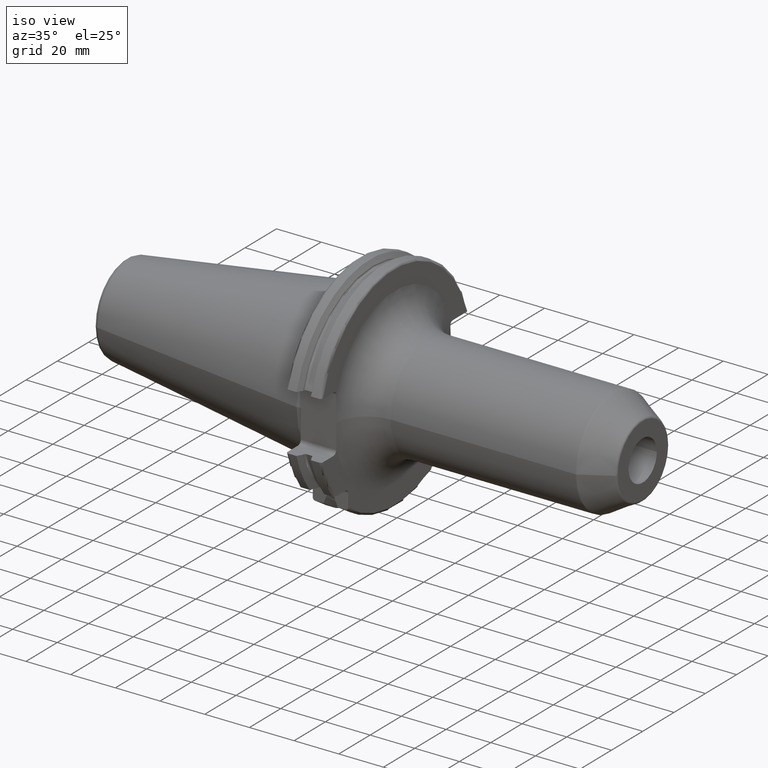
[diagram: clean part render]
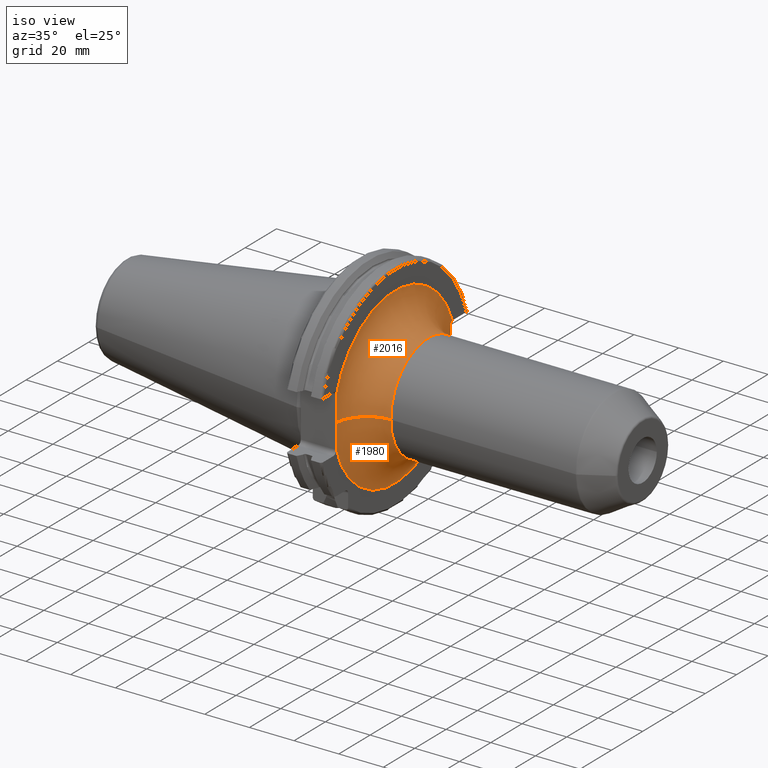
[diagram: same view with one multi-face feature highlighted, each face labeled with its STEP entity id]
A machine part, iso view. The highlighted faces form ONE feature: a constant-radius fillet chain: 2 tangent blend faces with common blend radius 15 mm. The faces share edges in the B-rep.
Their STEP definitions:
[1] entity #2016 (Torus):
#161=CARTESIAN_POINT('',(1.905E1,0.E0,0.E0));
#162=DIRECTION('',(1.E0,0.E0,0.E0));
#163=DIRECTION('',(0.E0,9.438595341718E-1,3.303470595494E-1));
#164=AXIS2_PLACEMENT_3D('',#161,#162,#163);
#185=CARTESIAN_POINT('',(3.405E1,-3.899999964013E1,-5.298089090639E-3));
#186=DIRECTION('',(0.E0,1.358484382215E-4,-9.999999907726E-1));
#187=DIRECTION('',(-9.949874394251E-1,9.999997600876E-2,1.358484068833E-5));
#188=AXIS2_PLACEMENT_3D('',#185,#186,#187);
#216=CARTESIAN_POINT('',(1.918137640837E1,3.53E1,1.115E1));
#217=CARTESIAN_POINT('',(1.917671494499E1,3.53E1,1.126616559868E1));
#218=CARTESIAN_POINT('',(1.916448306714E1,3.532343312153E1,1.149936506376E1));
#219=CARTESIAN_POINT('',(1.914038851501E1,3.542625648776E1,1.183392156617E1));
#220=CARTESIAN_POINT('',(1.911298733341E1,3.559953511393E1,1.215179385381E1));
#221=CARTESIAN_POINT('',(1.908660386944E1,3.584003914816E1,1.243192871620E1));
#222=CARTESIAN_POINT('',(1.906582869627E1,3.612957748043E1,1.265301125466E1));
#223=CARTESIAN_POINT('',(1.905281085720E1,3.645682053949E1,1.280960854187E1));
#224=CARTESIAN_POINT('',(1.905E1,3.669155660961E1,1.286712673317E1));
#225=CARTESIAN_POINT('',(1.905E1,3.681051548351E1,1.288356025536E1));
#227=CARTESIAN_POINT('',(1.951349414704E1,3.53E1,4.798122810643E-3));
#228=CARTESIAN_POINT('',(1.951347280974E1,3.53E1,6.215368898776E-1));
#229=CARTESIAN_POINT('',(1.950500717658E1,3.53E1,1.887638009137E0));
#230=CARTESIAN_POINT('',(1.946601815670E1,3.53E1,3.842591144301E0));
#231=CARTESIAN_POINT('',(1.939821598225E1,3.53E1,5.979554142847E0));
#232=CARTESIAN_POINT('',(1.929823798374E1,3.53E1,8.416985606384E0));
#233=CARTESIAN_POINT('',(1.921913129347E1,3.53E1,1.020913262166E1));
#234=CARTESIAN_POINT('',(1.918137640837E1,3.53E1,1.115E1));
#236=CARTESIAN_POINT('',(3.405E1,3.899999963973E1,5.301042149749E-3));
#237=DIRECTION('',(0.E0,-1.359241576859E-4,9.999999907623E-1));
#238=DIRECTION('',(-9.691003901972E-1,-2.466666426487E-1,-3.352795594094E-5));
#239=AXIS2_PLACEMENT_3D('',#236,#237,#238);
#241=CARTESIAN_POINT('',(1.905E1,-3.749999313437E1,1.071227308265E1));
#242=CARTESIAN_POINT('',(1.905E1,-3.749999313437E1,9.527070664641E0));
#243=CARTESIAN_POINT('',(1.907084416901E1,-3.750000320396E1,7.152680525913E0));
#244=CARTESIAN_POINT('',(1.911311898158E1,-3.749999908458E1,3.572424648342E0));
#245=CARTESIAN_POINT('',(1.912520469628E1,-3.75E1,1.187853866845E0));
#246=CARTESIAN_POINT('',(1.912518840862E1,-3.75E1,-5.094316480315E-3));
#1043=CARTESIAN_POINT('',(3.405E1,0.E0,0.E0));
#1044=DIRECTION('',(1.E0,0.E0,0.E0));
#1045=DIRECTION('',(0.E0,1.E0,0.E0));
#1046=AXIS2_PLACEMENT_3D('',#1043,#1044,#1045);
#1677=CARTESIAN_POINT('',(3.405E1,-2.4E1,0.E0));
#1678=CARTESIAN_POINT('',(3.405E1,2.4E1,0.E0));
#1679=VERTEX_POINT('',#1677);
#1680=VERTEX_POINT('',#1678);
#1681=CARTESIAN_POINT('',(1.905E1,3.681052183270E1,1.288353532243E1));
#1682=CARTESIAN_POINT('',(1.905E1,-3.749991569209E1,1.071243777514E1));
#1683=VERTEX_POINT('',#1681);
#1684=VERTEX_POINT('',#1682);
#1701=VERTEX_POINT('',#227);
#1702=VERTEX_POINT('',#234);
#1704=VERTEX_POINT('',#246);
#2000=CARTESIAN_POINT('',(3.405E1,0.E0,0.E0));
#2001=DIRECTION('',(1.E0,0.E0,0.E0));
#2002=DIRECTION('',(0.E0,1.485959642860E-3,-9.999988959614E-1));
#2003=AXIS2_PLACEMENT_3D('',#2000,#2001,#2002);
#2004=TOROIDAL_SURFACE('',#2003,3.9E1,1.5E1);
#2005=ORIENTED_EDGE('',*,*,#1945,.F.);
#2007=ORIENTED_EDGE('',*,*,#2006,.F.);
#2008=ORIENTED_EDGE('',*,*,#1880,.F.);
#2009=ORIENTED_EDGE('',*,*,#1974,.T.);
#2011=ORIENTED_EDGE('',*,*,#2010,.T.);
#2012=ORIENTED_EDGE('',*,*,#1970,.F.);
#2013=ORIENTED_EDGE('',*,*,#1987,.F.);
#2014=EDGE_LOOP('',(#2005,#2007,#2008,#2009,#2011,#2012,#2013));
#2015=FACE_OUTER_BOUND('',#2014,.F.);
#2016=ADVANCED_FACE('',(#2015),#2004,.F.);
#165=CIRCLE('',#164,3.9E1);
#189=CIRCLE('',#188,1.5E1);
#226=B_SPLINE_CURVE_WITH_KNOTS('',3,(#216,#217,#218,#219,#220,#221,#222,#223,
#224,#225),.UNSPECIFIED.,.F.,.F.,(4,1,1,1,1,1,1,4),(0.E0,1.428571428571E-1,
2.857142857143E-1,4.285714285714E-1,5.714285714286E-1,7.142857142857E-1,
8.571428571429E-1,1.E0),.UNSPECIFIED.);
#235=B_SPLINE_CURVE_WITH_KNOTS('',3,(#227,#228,#229,#230,#231,#232,#233,#234),
.UNSPECIFIED.,.F.,.F.,(4,1,1,1,1,4),(0.E0,2.E-1,4.E-1,6.E-1,8.E-1,1.E0),
.UNSPECIFIED.);
#240=CIRCLE('',#239,1.5E1);
#247=B_SPLINE_CURVE_WITH_KNOTS('',3,(#241,#242,#243,#244,#245,#246),
.UNSPECIFIED.,.F.,.F.,(4,1,1,4),(0.E0,3.333333333333E-1,6.666666666667E-1,1.E0),
.UNSPECIFIED.);
#1047=CIRCLE('',#1046,2.4E1);
#1880=EDGE_CURVE('',#1701,#1702,#235,.T.);
#1945=EDGE_CURVE('',#1683,#1684,#165,.T.);
#1970=EDGE_CURVE('',#1704,#1679,#189,.T.);
#1974=EDGE_CURVE('',#1701,#1680,#240,.T.);
#1987=EDGE_CURVE('',#1684,#1704,#247,.T.);
#2006=EDGE_CURVE('',#1702,#1683,#226,.T.);
#2010=EDGE_CURVE('',#1680,#1679,#1047,.T.);
[2] entity #1980 (Torus):
#136=CARTESIAN_POINT('',(1.905E1,0.E0,0.E0));
#137=DIRECTION('',(1.E0,0.E0,0.E0));
#138=DIRECTION('',(0.E0,-9.615379445209E-1,-2.746721340919E-1));
#139=AXIS2_PLACEMENT_3D('',#136,#137,#138);
#178=CARTESIAN_POINT('',(1.912518840862E1,-3.75E1,-5.094316480315E-3));
#179=CARTESIAN_POINT('',(1.912517212636E1,-3.75E1,-1.197647662443E0));
#180=CARTESIAN_POINT('',(1.911303187922E1,-3.749999798409E1,-3.580944599134E0));
#181=CARTESIAN_POINT('',(1.907076769775E1,-3.750000705568E1,-7.159068959778E0));
#182=CARTESIAN_POINT('',(1.905E1,-3.749998488070E1,-9.529428937360E0));
#183=CARTESIAN_POINT('',(1.905E1,-3.749998488070E1,-1.071222101944E1));
#185=CARTESIAN_POINT('',(3.405E1,-3.899999964013E1,-5.298089090639E-3));
#186=DIRECTION('',(0.E0,1.358484382215E-4,-9.999999907726E-1));
#187=DIRECTION('',(-9.949874394251E-1,9.999997600876E-2,1.358484068833E-5));
#188=AXIS2_PLACEMENT_3D('',#185,#186,#187);
#190=CARTESIAN_POINT('',(1.918137640837E1,3.53E1,-1.115E1));
#191=CARTESIAN_POINT('',(1.923178844981E1,3.53E1,-9.893711041845E0));
#192=CARTESIAN_POINT('',(1.934547264020E1,3.53E1,-7.393396953411E0));
#193=CARTESIAN_POINT('',(1.948001097596E1,3.53E1,-3.684019479554E0));
#194=CARTESIAN_POINT('',(1.951353659301E1,3.53E1,-1.222070809502E0));
#195=CARTESIAN_POINT('',(1.951349414704E1,3.53E1,4.798122810643E-3));
#197=CARTESIAN_POINT('',(1.905E1,3.681052671951E1,-1.288349795001E1));
#198=CARTESIAN_POINT('',(1.905E1,3.669161609853E1,-1.286707109370E1));
#199=CARTESIAN_POINT('',(1.905281259090E1,3.645693510649E1,-1.280963919932E1));
#200=CARTESIAN_POINT('',(1.906579536254E1,3.613016240846E1,-1.265337165657E1));
#201=CARTESIAN_POINT('',(1.908660401465E1,3.583998409582E1,-1.243192573948E1));
#202=CARTESIAN_POINT('',(1.911298260153E1,3.559959207815E1,-1.215184371651E1));
#203=CARTESIAN_POINT('',(1.914037793078E1,3.542630942895E1,-1.183405145315E1));
#204=CARTESIAN_POINT('',(1.916447645561E1,3.532345197102E1,-1.149947617503E1));
#205=CARTESIAN_POINT('',(1.917671309240E1,3.53E1,-1.126621176605E1));
#206=CARTESIAN_POINT('',(1.918137640837E1,3.53E1,-1.115E1));
#227=CARTESIAN_POINT('',(1.951349414704E1,3.53E1,4.798122810643E-3));
#236=CARTESIAN_POINT('',(3.405E1,3.899999963973E1,5.301042149749E-3));
#237=DIRECTION('',(0.E0,-1.359241576859E-4,9.999999907623E-1));
#238=DIRECTION('',(-9.691003901972E-1,-2.466666426487E-1,-3.352795594094E-5));
#239=AXIS2_PLACEMENT_3D('',#236,#237,#238);
#246=CARTESIAN_POINT('',(1.912518840862E1,-3.75E1,-5.094316480315E-3));
#1204=CARTESIAN_POINT('',(3.405E1,0.E0,0.E0));
#1205=DIRECTION('',(1.E0,0.E0,0.E0));
#1206=DIRECTION('',(0.E0,-1.E0,0.E0));
#1207=AXIS2_PLACEMENT_3D('',#1204,#1205,#1206);
#1673=CARTESIAN_POINT('',(1.905E1,-3.749997983631E1,-1.071221322958E1));
#1674=CARTESIAN_POINT('',(1.905E1,3.681051948064E1,-1.288354204266E1));
#1675=VERTEX_POINT('',#1673);
#1676=VERTEX_POINT('',#1674);
#1677=CARTESIAN_POINT('',(3.405E1,-2.4E1,0.E0));
#1678=CARTESIAN_POINT('',(3.405E1,2.4E1,0.E0));
#1679=VERTEX_POINT('',#1677);
#1680=VERTEX_POINT('',#1678);
#1701=VERTEX_POINT('',#227);
#1703=VERTEX_POINT('',#190);
#1704=VERTEX_POINT('',#246);
#1962=CARTESIAN_POINT('',(3.405E1,0.E0,0.E0));
#1963=DIRECTION('',(1.E0,0.E0,0.E0));
#1964=DIRECTION('',(0.E0,-1.485959642860E-3,9.999988959614E-1));
#1965=AXIS2_PLACEMENT_3D('',#1962,#1963,#1964);
#1966=TOROIDAL_SURFACE('',#1965,3.9E1,1.5E1);
#1967=ORIENTED_EDGE('',*,*,#1916,.F.);
#1969=ORIENTED_EDGE('',*,*,#1968,.F.);
#1971=ORIENTED_EDGE('',*,*,#1970,.T.);
#1973=ORIENTED_EDGE('',*,*,#1972,.T.);
#1975=ORIENTED_EDGE('',*,*,#1974,.F.);
#1976=ORIENTED_EDGE('',*,*,#1878,.F.);
#1977=ORIENTED_EDGE('',*,*,#1901,.F.);
#1978=EDGE_LOOP('',(#1967,#1969,#1971,#1973,#1975,#1976,#1977));
#1979=FACE_OUTER_BOUND('',#1978,.F.);
#1980=ADVANCED_FACE('',(#1979),#1966,.F.);
#140=CIRCLE('',#139,3.9E1);
#184=B_SPLINE_CURVE_WITH_KNOTS('',3,(#178,#179,#180,#181,#182,#183),
.UNSPECIFIED.,.F.,.F.,(4,1,1,4),(0.E0,3.333333333333E-1,6.666666666667E-1,1.E0),
.UNSPECIFIED.);
#189=CIRCLE('',#188,1.5E1);
#196=B_SPLINE_CURVE_WITH_KNOTS('',3,(#190,#191,#192,#193,#194,#195),
.UNSPECIFIED.,.F.,.F.,(4,1,1,4),(0.E0,3.333333333333E-1,6.666666666667E-1,1.E0),
.UNSPECIFIED.);
#207=B_SPLINE_CURVE_WITH_KNOTS('',3,(#197,#198,#199,#200,#201,#202,#203,#204,
#205,#206),.UNSPECIFIED.,.F.,.F.,(4,1,1,1,1,1,1,4),(0.E0,1.428571428571E-1,
2.857142857143E-1,4.285714285714E-1,5.714285714286E-1,7.142857142857E-1,
8.571428571429E-1,1.E0),.UNSPECIFIED.);
#240=CIRCLE('',#239,1.5E1);
#1208=CIRCLE('',#1207,2.4E1);
#1878=EDGE_CURVE('',#1703,#1701,#196,.T.);
#1901=EDGE_CURVE('',#1676,#1703,#207,.T.);
#1916=EDGE_CURVE('',#1675,#1676,#140,.T.);
#1968=EDGE_CURVE('',#1704,#1675,#184,.T.);
#1970=EDGE_CURVE('',#1704,#1679,#189,.T.);
#1972=EDGE_CURVE('',#1679,#1680,#1208,.T.);
#1974=EDGE_CURVE('',#1701,#1680,#240,.T.);